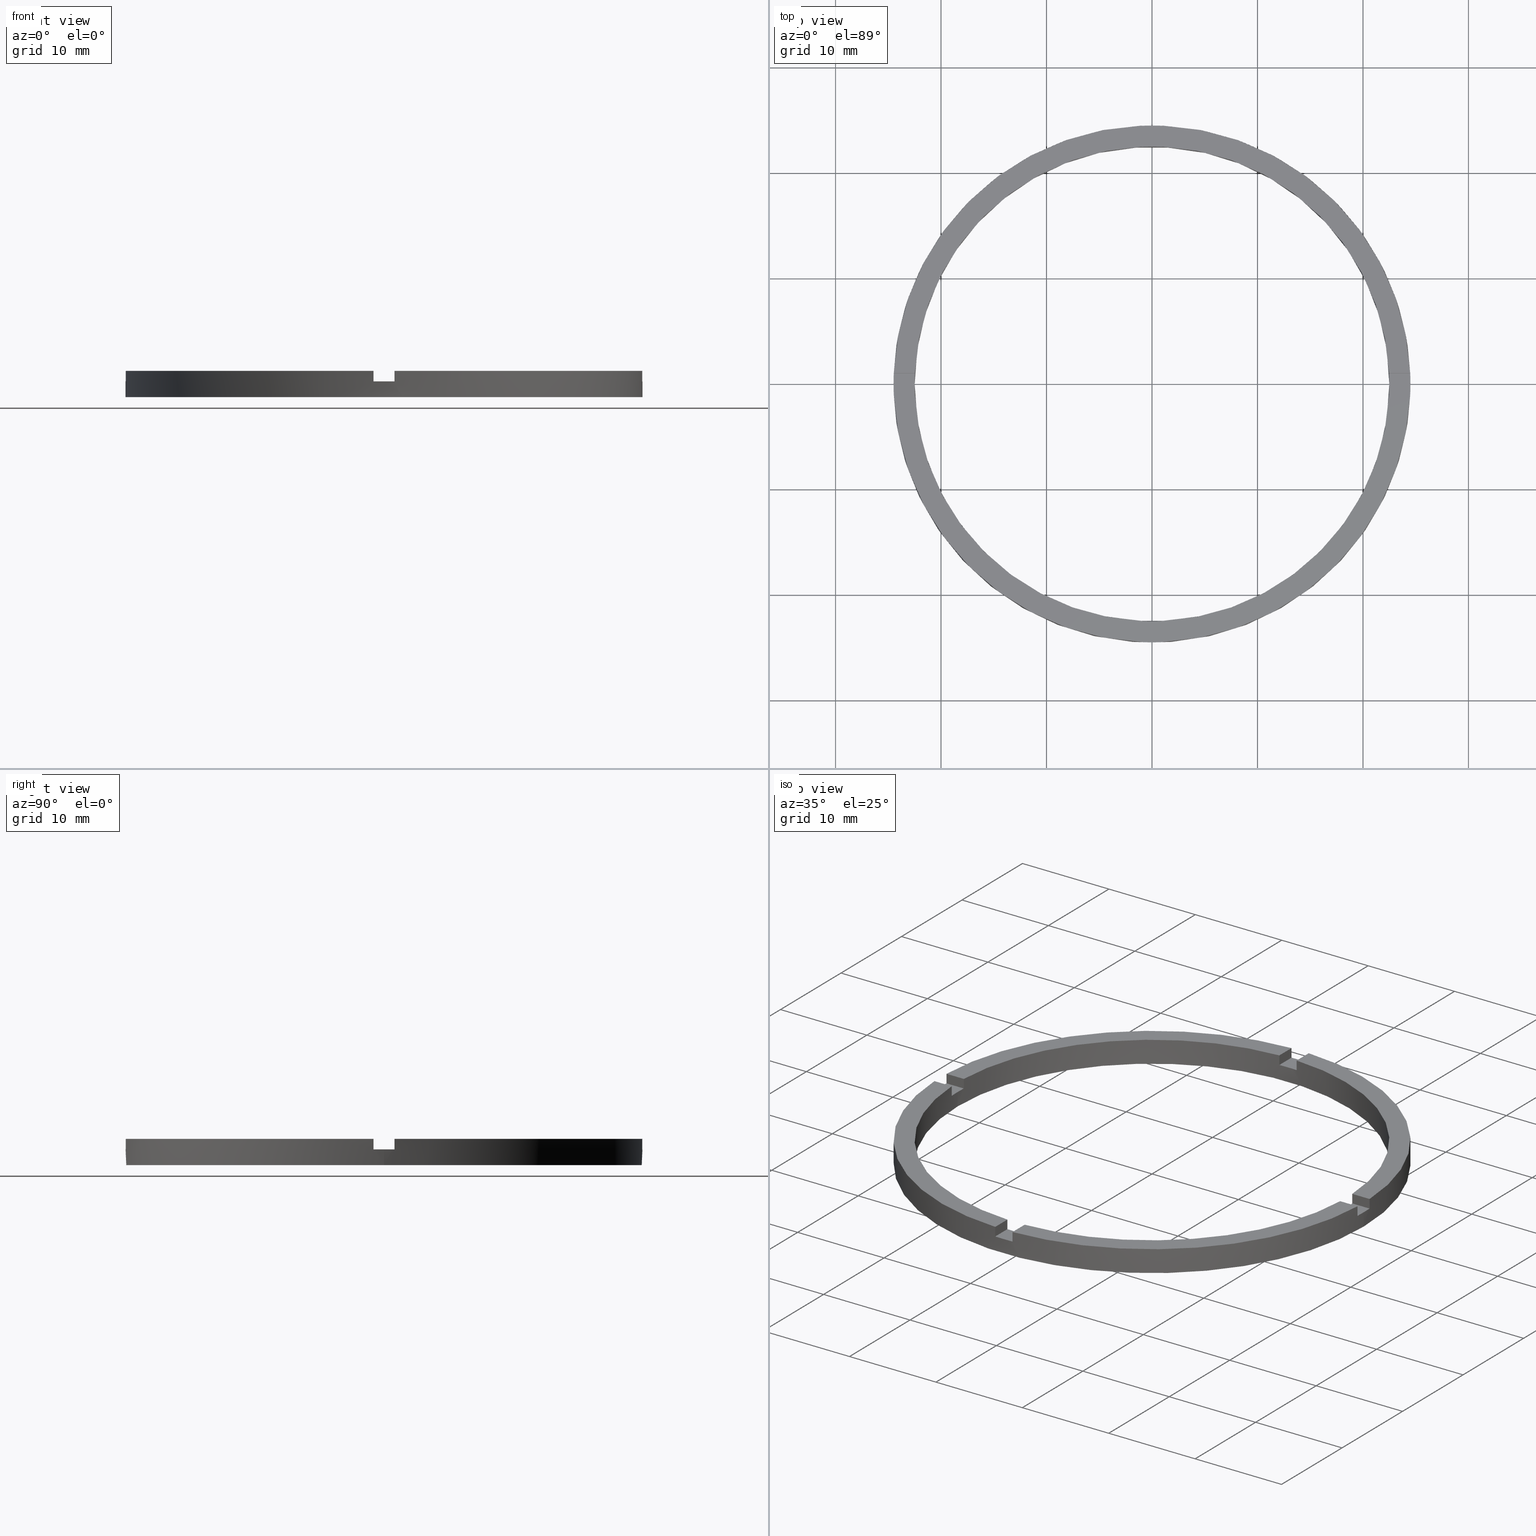
[diagram: canonical four-view strip — front | top / right | iso, engineering-drawing reading convention]
A machine part, canonical four-view strip (front | top / right | iso — engineering-drawing reading convention). The complete STEP part file that produces these views, byte-faithful:
ISO-10303-21;
HEADER;
FILE_DESCRIPTION (( 'STEP AP203' ),
    '1' );
FILE_NAME ('514103.step',
    '2024-12-26T02:37:47',
    ( 'MSI' ),
    ( '' ),
    'SwSTEP 2.0',
    'SolidWorks 2020',
    '' );
FILE_SCHEMA (( 'CONFIG_CONTROL_DESIGN' ));
ENDSEC;

DATA;
#1 = ORIENTED_EDGE ( 'NONE', *, *, #342, .F. ) ;
#2 = CARTESIAN_POINT ( 'NONE',  ( 0.000000000000000000, 0.000000000000000000, 1.500000000000000000 ) ) ;
#3 = EDGE_LOOP ( 'NONE', ( #246, #91 ) ) ;
#4 = ORIENTED_EDGE ( 'NONE', *, *, #556, .F. ) ;
#5 = EDGE_CURVE ( 'NONE', #759, #273, #355, .T. ) ;
#6 = DIRECTION ( 'NONE',  ( 0.000000000000000000, 0.000000000000000000, 1.000000000000000000 ) ) ;
#7 = DIRECTION ( 'NONE',  ( -0.000000000000000000, -0.000000000000000000, -1.000000000000000000 ) ) ;
#8 = DIRECTION ( 'NONE',  ( 0.000000000000000000, 0.000000000000000000, 1.000000000000000000 ) ) ;
#9 = ORIENTED_EDGE ( 'NONE', *, *, #593, .F. ) ;
#10 = AXIS2_PLACEMENT_3D ( 'NONE', #82, #397, #528 ) ;
#11 = ORIENTED_EDGE ( 'NONE', *, *, #5, .T. ) ;
#12 = EDGE_CURVE ( 'NONE', #112, #207, #603, .T. ) ;
#13 = VERTEX_POINT ( 'NONE', #702 ) ;
#14 = CC_DESIGN_PERSON_AND_ORGANIZATION_ASSIGNMENT ( #478, #467, ( #720 ) ) ;
#15 = ORIENTED_EDGE ( 'NONE', *, *, #181, .T. ) ;
#16 = ORIENTED_EDGE ( 'NONE', *, *, #654, .F. ) ;
#17 = ORIENTED_EDGE ( 'NONE', *, *, #475, .T. ) ;
#18 = ORIENTED_EDGE ( 'NONE', *, *, #681, .T. ) ;
#19 = ORIENTED_EDGE ( 'NONE', *, *, #308, .T. ) ;
#20 = ORIENTED_EDGE ( 'NONE', *, *, #707, .T. ) ;
#21 = ADVANCED_FACE ( 'NONE', ( #374 ), #75, .T. ) ;
#22 = CARTESIAN_POINT ( 'NONE',  ( 0.000000000000000000, 0.000000000000000000, 2.500000000000000000 ) ) ;
#23 = EDGE_CURVE ( 'NONE', #458, #607, #637, .T. ) ;
#24 = ORIENTED_EDGE ( 'NONE', *, *, #101, .F. ) ;
#25 = AXIS2_PLACEMENT_3D ( 'NONE', #305, #554, #57 ) ;
#26 = CARTESIAN_POINT ( 'NONE',  ( -14.50000000000018652, -1.000000000000023981, 1.500000000000000000 ) ) ;
#27 = APPLICATION_CONTEXT ( 'configuration controlled 3d designs of mechanical parts and assemblies' ) ;
#28 = DIRECTION ( 'NONE',  ( 0.000000000000000000, 0.000000000000000000, 1.000000000000000000 ) ) ;
#29 = UNCERTAINTY_MEASURE_WITH_UNIT (LENGTH_MEASURE( 1.000000000000000082E-05 ), #572, 'distance_accuracy_value', 'NONE');
#30 = DIRECTION ( 'NONE',  ( 0.000000000000000000, 0.000000000000000000, 1.000000000000000000 ) ) ;
#31 = EDGE_CURVE ( 'NONE', #284, #263, #360, .T. ) ;
#32 = DIRECTION ( 'NONE',  ( 0.000000000000000000, 0.000000000000000000, 1.000000000000000000 ) ) ;
#33 = CARTESIAN_POINT ( 'NONE',  ( -1.000000000000025979, 24.47958332978729601, 1.500000000000000000 ) ) ;
#34 = AXIS2_PLACEMENT_3D ( 'NONE', #488, #647, #170 ) ;
#35 = DIRECTION ( 'NONE',  ( 0.000000000000000000, 0.000000000000000000, 1.000000000000000000 ) ) ;
#36 = CARTESIAN_POINT ( 'NONE',  ( 0.9999999999998389066, -22.47776679298903346, 2.500000000000000000 ) ) ;
#37 = CC_DESIGN_DATE_AND_TIME_ASSIGNMENT ( #705, #291, ( #195 ) ) ;
#38 = CARTESIAN_POINT ( 'NONE',  ( -24.50000000000000000, 0.000000000000000000, 2.500000000000000000 ) ) ;
#39 = ORIENTED_EDGE ( 'NONE', *, *, #475, .F. ) ;
#40 = ORIENTED_EDGE ( 'NONE', *, *, #736, .F. ) ;
#41 = AXIS2_PLACEMENT_3D ( 'NONE', #48, #325, #628 ) ;
#42 = ORIENTED_EDGE ( 'NONE', *, *, #12, .F. ) ;
#43 = CARTESIAN_POINT ( 'NONE',  ( 22.47776679298903346, 0.9999999999998421263, 2.500000000000000000 ) ) ;
#44 = ORIENTED_EDGE ( 'NONE', *, *, #194, .T. ) ;
#45 = DIRECTION ( 'NONE',  ( 1.000000000000000000, 4.336808689942018352E-17, 0.000000000000000000 ) ) ;
#46 = EDGE_CURVE ( 'NONE', #542, #275, #618, .T. ) ;
#47 = DATE_TIME_ROLE ( 'classification_date' ) ;
#48 = CARTESIAN_POINT ( 'NONE',  ( 0.000000000000000000, 0.000000000000000000, 2.500000000000000000 ) ) ;
#49 = CARTESIAN_POINT ( 'NONE',  ( -1.000000000000025979, 14.50000000000000000, 1.500000000000000000 ) ) ;
#50 = ORIENTED_EDGE ( 'NONE', *, *, #386, .F. ) ;
#51 = ORIENTED_EDGE ( 'NONE', *, *, #12, .T. ) ;
#52 = EDGE_CURVE ( 'NONE', #97, #284, #98, .T. ) ;
#53 = AXIS2_PLACEMENT_3D ( 'NONE', #281, #471, #565 ) ;
#54 = CARTESIAN_POINT ( 'NONE',  ( 22.47776679298901925, -1.000000000000157874, 1.500000000000000000 ) ) ;
#55 = DIRECTION ( 'NONE',  ( 1.000000000000000000, 0.000000000000000000, 0.000000000000000000 ) ) ;
#56 = CARTESIAN_POINT ( 'NONE',  ( -1.000000000000025979, 22.47776679298902636, 2.500000000000000000 ) ) ;
#57 = DIRECTION ( 'NONE',  ( 1.000000000000000000, 0.000000000000000000, 0.000000000000000000 ) ) ;
#58 = PLANE ( 'NONE',  #764 ) ;
#59 = ADVANCED_FACE ( 'NONE', ( #133 ), #497, .F. ) ;
#60 = AXIS2_PLACEMENT_3D ( 'NONE', #585, #8, #55 ) ;
#61 = CARTESIAN_POINT ( 'NONE',  ( 14.49999999999999467, 0.9999999999998419042, 1.500000000000000000 ) ) ;
#62 = CARTESIAN_POINT ( 'NONE',  ( 22.50000000000000355, 2.755455298081545172E-15, 2.500000000000000000 ) ) ;
#63 = EDGE_CURVE ( 'NONE', #275, #731, #389, .T. ) ;
#64 = DIRECTION ( 'NONE',  ( 0.000000000000000000, -0.000000000000000000, 1.000000000000000000 ) ) ;
#65 = DIRECTION ( 'NONE',  ( 0.000000000000000000, 1.000000000000000000, 0.000000000000000000 ) ) ;
#66 = AXIS2_PLACEMENT_3D ( 'NONE', #493, #192, #299 ) ;
#67 = AXIS2_PLACEMENT_3D ( 'NONE', #761, #30, #616 ) ;
#68 = APPLICATION_PROTOCOL_DEFINITION ( 'international standard', 'config_control_design', 1994, #27 ) ;
#69 = DIRECTION ( 'NONE',  ( -0.000000000000000000, 0.000000000000000000, 1.000000000000000000 ) ) ;
#70 = CC_DESIGN_PERSON_AND_ORGANIZATION_ASSIGNMENT ( #711, #88, ( #574 ) ) ;
#71 = PLANE ( 'NONE',  #768 ) ;
#72 = ADVANCED_FACE ( 'NONE', ( #651 ), #219, .T. ) ;
#73 = CARTESIAN_POINT ( 'NONE',  ( 0.9999999999999740208, 22.47776679298902636, 2.500000000000000000 ) ) ;
#74 = CARTESIAN_POINT ( 'NONE',  ( 0.000000000000000000, 0.000000000000000000, 0.000000000000000000 ) ) ;
#75 = PLANE ( 'NONE',  #521 ) ;
#76 = EDGE_CURVE ( 'NONE', #611, #520, #659, .T. ) ;
#77 = CARTESIAN_POINT ( 'NONE',  ( 14.49999999999999467, -1.000000000000158096, 1.500000000000000000 ) ) ;
#78 = ORIENTED_EDGE ( 'NONE', *, *, #515, .T. ) ;
#79 = ORIENTED_EDGE ( 'NONE', *, *, #354, .F. ) ;
#80 = APPROVAL_ROLE ( '' ) ;
#81 = VERTEX_POINT ( 'NONE', #215 ) ;
#82 = CARTESIAN_POINT ( 'NONE',  ( 0.000000000000000000, 0.000000000000000000, 0.000000000000000000 ) ) ;
#83 = EDGE_LOOP ( 'NONE', ( #378, #632, #104, #79, #563, #145 ) ) ;
#84 = ORIENTED_EDGE ( 'NONE', *, *, #763, .F. ) ;
#85 = AXIS2_PLACEMENT_3D ( 'NONE', #631, #576, #776 ) ;
#86 = EDGE_LOOP ( 'NONE', ( #734, #718, #99, #210, #535, #205, #728, #19, #615, #93, #4, #341 ) ) ;
#87 = MANIFOLD_SOLID_BREP ( '�г�-����1', #455 ) ;
#88 = PERSON_AND_ORGANIZATION_ROLE ( 'classification_officer' ) ;
#89 = PLANE ( 'NONE',  #148 ) ;
#90 = EDGE_LOOP ( 'NONE', ( #534, #286, #20, #24, #115, #113 ) ) ;
#91 = ORIENTED_EDGE ( 'NONE', *, *, #568, .F. ) ;
#92 = CC_DESIGN_DATE_AND_TIME_ASSIGNMENT ( #460, #47, ( #574 ) ) ;
#93 = ORIENTED_EDGE ( 'NONE', *, *, #31, .T. ) ;
#94 = PLANE ( 'NONE',  #454 ) ;
#95 = VECTOR ( 'NONE', #577, 1000.000000000000000 ) ;
#96 = CARTESIAN_POINT ( 'NONE',  ( 0.000000000000000000, 0.000000000000000000, 2.500000000000000000 ) ) ;
#97 = VERTEX_POINT ( 'NONE', #507 ) ;
#98 = LINE ( 'NONE', #109, #382 ) ;
#99 = ORIENTED_EDGE ( 'NONE', *, *, #568, .T. ) ;
#100 = AXIS2_PLACEMENT_3D ( 'NONE', #96, #730, #245 ) ;
#101 = EDGE_CURVE ( 'NONE', #611, #643, #399, .T. ) ;
#102 = ORIENTED_EDGE ( 'NONE', *, *, #301, .F. ) ;
#103 = DIRECTION ( 'NONE',  ( -0.000000000000000000, -0.000000000000000000, -1.000000000000000000 ) ) ;
#104 = ORIENTED_EDGE ( 'NONE', *, *, #743, .T. ) ;
#105 = ORIENTED_EDGE ( 'NONE', *, *, #356, .T. ) ;
#106 = CC_DESIGN_PERSON_AND_ORGANIZATION_ASSIGNMENT ( #186, #175, ( #462 ) ) ;
#107 = ORIENTED_EDGE ( 'NONE', *, *, #76, .T. ) ;
#108 = ORIENTED_EDGE ( 'NONE', *, *, #743, .F. ) ;
#109 = CARTESIAN_POINT ( 'NONE',  ( 0.9999999999999740208, 14.50000000000000000, 1.500000000000000000 ) ) ;
#110 = ORIENTED_EDGE ( 'NONE', *, *, #491, .F. ) ;
#111 = CARTESIAN_POINT ( 'NONE',  ( -14.50000000000018652, 0.9999999999999759082, 2.500000000000000000 ) ) ;
#112 = VERTEX_POINT ( 'NONE', #602 ) ;
#113 = ORIENTED_EDGE ( 'NONE', *, *, #23, .T. ) ;
#114 = ORIENTED_EDGE ( 'NONE', *, *, #681, .F. ) ;
#115 = ORIENTED_EDGE ( 'NONE', *, *, #322, .F. ) ;
#116 = CARTESIAN_POINT ( 'NONE',  ( -1.000000000000160760, -24.47958332978728890, 2.500000000000000000 ) ) ;
#117 = VERTEX_POINT ( 'NONE', #320 ) ;
#118 = CARTESIAN_POINT ( 'NONE',  ( 0.9999999999999740208, 14.50000000000000000, 2.500000000000000000 ) ) ;
#119 = EDGE_CURVE ( 'NONE', #624, #533, #410, .T. ) ;
#120 = ORIENTED_EDGE ( 'NONE', *, *, #324, .F. ) ;
#121 = ORIENTED_EDGE ( 'NONE', *, *, #599, .T. ) ;
#122 = PLANE ( 'NONE',  #266 ) ;
#123 = CARTESIAN_POINT ( 'NONE',  ( 22.50000000000000355, 2.755455298081545172E-15, 1.500000000000000000 ) ) ;
#124 = CARTESIAN_POINT ( 'NONE',  ( 0.9999999999999740208, 14.50000000000000000, 1.500000000000000000 ) ) ;
#125 = VECTOR ( 'NONE', #752, 1000.000000000000000 ) ;
#126 = VECTOR ( 'NONE', #231, 1000.000000000000000 ) ;
#127 = CARTESIAN_POINT ( 'NONE',  ( 14.49999999999999467, 0.9999999999998419042, 1.500000000000000000 ) ) ;
#128 = FACE_OUTER_BOUND ( 'NONE', #370, .T. ) ;
#129 = DIRECTION ( 'NONE',  ( -0.000000000000000000, -0.000000000000000000, -1.000000000000000000 ) ) ;
#130 = CARTESIAN_POINT ( 'NONE',  ( 14.49999999999999467, -1.000000000000158096, 2.500000000000000000 ) ) ;
#131 = FACE_OUTER_BOUND ( 'NONE', #630, .T. ) ;
#132 = CARTESIAN_POINT ( 'NONE',  ( 24.50000000000000000, 3.000384657911015469E-15, 1.500000000000000000 ) ) ;
#133 = FACE_OUTER_BOUND ( 'NONE', #264, .T. ) ;
#134 = FACE_OUTER_BOUND ( 'NONE', #287, .T. ) ;
#135 = DIRECTION ( 'NONE',  ( 0.000000000000000000, 0.000000000000000000, 1.000000000000000000 ) ) ;
#136 = DESIGN_CONTEXT ( 'detailed design', #514, 'design' ) ;
#137 = CARTESIAN_POINT ( 'NONE',  ( -1.000000000000160760, -24.47958332978728890, 2.500000000000000000 ) ) ;
#138 = EDGE_CURVE ( 'NONE', #607, #782, #418, .T. ) ;
#139 = LINE ( 'NONE', #479, #670 ) ;
#140 = FACE_OUTER_BOUND ( 'NONE', #540, .T. ) ;
#141 = VECTOR ( 'NONE', #413, 1000.000000000000000 ) ;
#142 = MECHANICAL_CONTEXT ( 'NONE', #27, 'mechanical' ) ;
#143 = VECTOR ( 'NONE', #6, 1000.000000000000000 ) ;
#144 = DIRECTION ( 'NONE',  ( -0.000000000000000000, -0.000000000000000000, -1.000000000000000000 ) ) ;
#145 = ORIENTED_EDGE ( 'NONE', *, *, #513, .T. ) ;
#146 = VECTOR ( 'NONE', #584, 1000.000000000000000 ) ;
#147 = ORIENTED_EDGE ( 'NONE', *, *, #267, .T. ) ;
#148 = AXIS2_PLACEMENT_3D ( 'NONE', #185, #650, #573 ) ;
#149 = CIRCLE ( 'NONE', #25, 24.50000000000000000 ) ;
#150 = VECTOR ( 'NONE', #758, 1000.000000000000000 ) ;
#151 = EDGE_CURVE ( 'NONE', #714, #624, #662, .T. ) ;
#152 = DIRECTION ( 'NONE',  ( 0.000000000000000000, 0.000000000000000000, 1.000000000000000000 ) ) ;
#153 = CIRCLE ( 'NONE', #41, 22.50000000000000355 ) ;
#154 = AXIS2_PLACEMENT_3D ( 'NONE', #127, #601, #316 ) ;
#155 = DIRECTION ( 'NONE',  ( 0.000000000000000000, 0.000000000000000000, 1.000000000000000000 ) ) ;
#156 = CYLINDRICAL_SURFACE ( 'NONE', #100, 22.50000000000000355 ) ;
#157 = FACE_OUTER_BOUND ( 'NONE', #709, .T. ) ;
#158 = CIRCLE ( 'NONE', #251, 24.50000000000000000 ) ;
#159 = VECTOR ( 'NONE', #238, 1000.000000000000000 ) ;
#160 = DIRECTION ( 'NONE',  ( 1.000000000000000000, 0.000000000000000000, 0.000000000000000000 ) ) ;
#161 = LINE ( 'NONE', #345, #126 ) ;
#162 = VECTOR ( 'NONE', #489, 1000.000000000000000 ) ;
#163 = EDGE_CURVE ( 'NONE', #328, #621, #149, .T. ) ;
#164 = CIRCLE ( 'NONE', #10, 24.50000000000000000 ) ;
#165 = AXIS2_PLACEMENT_3D ( 'NONE', #22, #262, #311 ) ;
#166 = LINE ( 'NONE', #232, #691 ) ;
#167 = CIRCLE ( 'NONE', #225, 22.50000000000000355 ) ;
#168 = LINE ( 'NONE', #312, #686 ) ;
#169 = CIRCLE ( 'NONE', #742, 24.50000000000000000 ) ;
#170 = DIRECTION ( 'NONE',  ( 1.000000000000000000, 0.000000000000000000, 0.000000000000000000 ) ) ;
#171 = FACE_OUTER_BOUND ( 'NONE', #623, .T. ) ;
#172 = FACE_OUTER_BOUND ( 'NONE', #303, .T. ) ;
#173 = CYLINDRICAL_SURFACE ( 'NONE', #437, 24.50000000000000000 ) ;
#174 = CIRCLE ( 'NONE', #391, 24.50000000000000000 ) ;
#175 = PERSON_AND_ORGANIZATION_ROLE ( 'creator' ) ;
#176 = LINE ( 'NONE', #754, #433 ) ;
#177 = CARTESIAN_POINT ( 'NONE',  ( 0.000000000000000000, 0.000000000000000000, 2.500000000000000000 ) ) ;
#178 = LINE ( 'NONE', #56, #430 ) ;
#179 = FACE_OUTER_BOUND ( 'NONE', #90, .T. ) ;
#180 = DIRECTION ( 'NONE',  ( 0.000000000000000000, 0.000000000000000000, 1.000000000000000000 ) ) ;
#181 = EDGE_CURVE ( 'NONE', #274, #263, #406, .T. ) ;
#182 = FACE_OUTER_BOUND ( 'NONE', #3, .T. ) ;
#183 = CIRCLE ( 'NONE', #34, 24.50000000000000000 ) ;
#184 = LINE ( 'NONE', #751, #191 ) ;
#185 = CARTESIAN_POINT ( 'NONE',  ( -1.000000000000162093, -14.50000000000018119, 1.500000000000000000 ) ) ;
#186 = PERSON_AND_ORGANIZATION ( #495, #474 ) ;
#187 = COORDINATED_UNIVERSAL_TIME_OFFSET ( 8, 0, .AHEAD. ) ;
#188 = LOCAL_TIME ( 10, 37, 47.00000000000000000, #438 ) ;
#189 = ORIENTED_EDGE ( 'NONE', *, *, #356, .F. ) ;
#190 = DIRECTION ( 'NONE',  ( -0.000000000000000000, 0.000000000000000000, 1.000000000000000000 ) ) ;
#191 = VECTOR ( 'NONE', #749, 1000.000000000000000 ) ;
#192 = DIRECTION ( 'NONE',  ( 0.000000000000000000, -0.000000000000000000, 1.000000000000000000 ) ) ;
#193 = PERSON_AND_ORGANIZATION ( #495, #474 ) ;
#194 = EDGE_CURVE ( 'NONE', #624, #621, #649, .T. ) ;
#195 = PRODUCT_DEFINITION ( 'δ֪', '', #462, #136 ) ;
#196 = ORIENTED_EDGE ( 'NONE', *, *, #23, .F. ) ;
#197 = DIRECTION ( 'NONE',  ( -1.000000000000000000, -1.734723475976807341E-16, 0.000000000000000000 ) ) ;
#198 = CIRCLE ( 'NONE', #673, 22.50000000000000355 ) ;
#199 = VERTEX_POINT ( 'NONE', #33 ) ;
#200 = DATE_AND_TIME ( #729, #188 ) ;
#201 = ORIENTED_EDGE ( 'NONE', *, *, #181, .F. ) ;
#202 = APPROVAL_PERSON_ORGANIZATION ( #193, #744, #329 ) ;
#203 = ORIENTED_EDGE ( 'NONE', *, *, #278, .F. ) ;
#204 = CALENDAR_DATE ( 2024, 26, 12 ) ;
#205 = ORIENTED_EDGE ( 'NONE', *, *, #393, .T. ) ;
#206 = EDGE_CURVE ( 'NONE', #242, #717, #139, .T. ) ;
#207 = VERTEX_POINT ( 'NONE', #36 ) ;
#208 = LOCAL_TIME ( 10, 37, 47.00000000000000000, #704 ) ;
#209 = CARTESIAN_POINT ( 'NONE',  ( 22.47776679298903346, 0.9999999999998421263, 1.500000000000000000 ) ) ;
#210 = ORIENTED_EDGE ( 'NONE', *, *, #337, .F. ) ;
#211 = CIRCLE ( 'NONE', #344, 22.50000000000000355 ) ;
#212 = ADVANCED_FACE ( 'NONE', ( #134 ), #706, .F. ) ;
#213 = APPROVAL_DATE_TIME ( #200, #594 ) ;
#214 = CARTESIAN_POINT ( 'NONE',  ( 0.000000000000000000, 0.000000000000000000, 2.500000000000000000 ) ) ;
#215 = CARTESIAN_POINT ( 'NONE',  ( -1.000000000000025979, 22.47776679298902636, 2.500000000000000000 ) ) ;
#216 = LOCAL_TIME ( 10, 37, 47.00000000000000000, #469 ) ;
#217 = AXIS2_PLACEMENT_3D ( 'NONE', #557, #597, #750 ) ;
#218 = PLANE ( 'NONE',  #154 ) ;
#219 = PLANE ( 'NONE',  #229 ) ;
#220 = CARTESIAN_POINT ( 'NONE',  ( -14.50000000000018652, 0.9999999999999759082, 1.500000000000000000 ) ) ;
#221 = CARTESIAN_POINT ( 'NONE',  ( 0.000000000000000000, 0.000000000000000000, 1.500000000000000000 ) ) ;
#222 = DIRECTION ( 'NONE',  ( 1.000000000000000000, 0.000000000000000000, -0.000000000000000000 ) ) ;
#223 = ADVANCED_FACE ( 'NONE', ( #131 ), #680, .T. ) ;
#224 = DIRECTION ( 'NONE',  ( 1.000000000000000000, 0.000000000000000000, -0.000000000000000000 ) ) ;
#225 = AXIS2_PLACEMENT_3D ( 'NONE', #261, #64, #760 ) ;
#226 = CARTESIAN_POINT ( 'NONE',  ( -22.47776679298902636, -1.000000000000025313, 1.500000000000000000 ) ) ;
#227 = AXIS2_PLACEMENT_3D ( 'NONE', #690, #371, #318 ) ;
#228 = CARTESIAN_POINT ( 'NONE',  ( 0.000000000000000000, 0.000000000000000000, 2.500000000000000000 ) ) ;
#229 = AXIS2_PLACEMENT_3D ( 'NONE', #247, #28, #222 ) ;
#230 = PERSON_AND_ORGANIZATION_ROLE ( 'creator' ) ;
#231 = DIRECTION ( 'NONE',  ( -0.000000000000000000, -0.000000000000000000, -1.000000000000000000 ) ) ;
#232 = CARTESIAN_POINT ( 'NONE',  ( -1.000000000000025979, 14.50000000000000000, 1.500000000000000000 ) ) ;
#233 = DIRECTION ( 'NONE',  ( 1.000000000000000000, 0.000000000000000000, 0.000000000000000000 ) ) ;
#234 = VERTEX_POINT ( 'NONE', #676 ) ;
#235 = PERSON_AND_ORGANIZATION_ROLE ( 'design_supplier' ) ;
#236 = CARTESIAN_POINT ( 'NONE',  ( 0.9999999999999740208, 24.47958332978729601, 1.500000000000000000 ) ) ;
#237 = ORIENTED_EDGE ( 'NONE', *, *, #52, .T. ) ;
#238 = DIRECTION ( 'NONE',  ( 0.000000000000000000, 0.000000000000000000, 1.000000000000000000 ) ) ;
#239 = DIRECTION ( 'NONE',  ( 0.000000000000000000, 0.000000000000000000, 1.000000000000000000 ) ) ;
#240 = EDGE_CURVE ( 'NONE', #112, #782, #392, .T. ) ;
#241 = ORIENTED_EDGE ( 'NONE', *, *, #599, .F. ) ;
#242 = VERTEX_POINT ( 'NONE', #132 ) ;
#243 = ORIENTED_EDGE ( 'NONE', *, *, #509, .T. ) ;
#244 = CARTESIAN_POINT ( 'NONE',  ( -1.000000000000025979, 24.47958332978729601, 2.500000000000000000 ) ) ;
#245 = DIRECTION ( 'NONE',  ( -1.000000000000000000, 0.000000000000000000, 0.000000000000000000 ) ) ;
#246 = ORIENTED_EDGE ( 'NONE', *, *, #487, .F. ) ;
#247 = CARTESIAN_POINT ( 'NONE',  ( 0.000000000000000000, 0.000000000000000000, 1.500000000000000000 ) ) ;
#248 = PLANE ( 'NONE',  #484 ) ;
#249 = ADVANCED_FACE ( 'NONE', ( #157 ), #122, .T. ) ;
#250 = DIRECTION ( 'NONE',  ( 0.000000000000000000, 0.000000000000000000, 1.000000000000000000 ) ) ;
#251 = AXIS2_PLACEMENT_3D ( 'NONE', #648, #306, #552 ) ;
#252 = CARTESIAN_POINT ( 'NONE',  ( -22.47776679298902636, 0.9999999999999746869, 2.500000000000000000 ) ) ;
#253 = EDGE_LOOP ( 'NONE', ( #51, #510, #417, #50 ) ) ;
#254 = EDGE_CURVE ( 'NONE', #607, #242, #158, .T. ) ;
#255 = EDGE_LOOP ( 'NONE', ( #260, #107, #280, #9, #468, #84, #724, #203, #537, #726, #522, #472 ) ) ;
#256 = ADVANCED_FACE ( 'NONE', ( #421 ), #156, .F. ) ;
#257 = DIRECTION ( 'NONE',  ( -0.000000000000000000, -0.000000000000000000, -1.000000000000000000 ) ) ;
#258 = EDGE_LOOP ( 'NONE', ( #346, #121, #110, #237 ) ) ;
#259 = DIRECTION ( 'NONE',  ( 0.000000000000000000, 0.000000000000000000, 1.000000000000000000 ) ) ;
#260 = ORIENTED_EDGE ( 'NONE', *, *, #322, .T. ) ;
#261 = CARTESIAN_POINT ( 'NONE',  ( 0.000000000000000000, 0.000000000000000000, 1.500000000000000000 ) ) ;
#262 = DIRECTION ( 'NONE',  ( 0.000000000000000000, 0.000000000000000000, 1.000000000000000000 ) ) ;
#263 = VERTEX_POINT ( 'NONE', #330 ) ;
#264 = EDGE_LOOP ( 'NONE', ( #196, #358, #17, #635 ) ) ;
#265 = CARTESIAN_POINT ( 'NONE',  ( 22.47776679298901925, -1.000000000000157874, 2.500000000000000000 ) ) ;
#266 = AXIS2_PLACEMENT_3D ( 'NONE', #214, #579, #294 ) ;
#267 = EDGE_CURVE ( 'NONE', #362, #520, #682, .T. ) ;
#268 = ORIENTED_EDGE ( 'NONE', *, *, #707, .F. ) ;
#269 = AXIS2_PLACEMENT_3D ( 'NONE', #49, #527, #775 ) ;
#270 = DIRECTION ( 'NONE',  ( 0.000000000000000000, 0.000000000000000000, 1.000000000000000000 ) ) ;
#271 = DIRECTION ( 'NONE',  ( 1.000000000000000000, 0.000000000000000000, 0.000000000000000000 ) ) ;
#272 = DIRECTION ( 'NONE',  ( 1.000000000000000000, 0.000000000000000000, -0.000000000000000000 ) ) ;
#273 = VERTEX_POINT ( 'NONE', #298 ) ;
#274 = VERTEX_POINT ( 'NONE', #748 ) ;
#275 = VERTEX_POINT ( 'NONE', #657 ) ;
#276 = PLANE ( 'NONE',  #545 ) ;
#277 = ADVANCED_FACE ( 'NONE', ( #140 ), #492, .T. ) ;
#278 = EDGE_CURVE ( 'NONE', #714, #117, #646, .T. ) ;
#279 = VERTEX_POINT ( 'NONE', #591 ) ;
#280 = ORIENTED_EDGE ( 'NONE', *, *, #267, .F. ) ;
#281 = CARTESIAN_POINT ( 'NONE',  ( -14.50000000000018652, 0.9999999999999759082, 1.500000000000000000 ) ) ;
#282 = DIRECTION ( 'NONE',  ( -1.000000000000000000, -1.734723475976807341E-16, 0.000000000000000000 ) ) ;
#283 = ORIENTED_EDGE ( 'NONE', *, *, #498, .F. ) ;
#284 = VERTEX_POINT ( 'NONE', #236 ) ;
#285 = ORIENTED_EDGE ( 'NONE', *, *, #393, .F. ) ;
#286 = ORIENTED_EDGE ( 'NONE', *, *, #583, .T. ) ;
#287 = EDGE_LOOP ( 'NONE', ( #379, #373, #529, #285 ) ) ;
#288 = DIRECTION ( 'NONE',  ( 0.000000000000000000, 0.000000000000000000, 1.000000000000000000 ) ) ;
#289 = DIRECTION ( 'NONE',  ( -0.000000000000000000, -0.000000000000000000, -1.000000000000000000 ) ) ;
#290 = DIRECTION ( 'NONE',  ( 1.000000000000000000, 0.000000000000000000, 0.000000000000000000 ) ) ;
#291 = DATE_TIME_ROLE ( 'creation_date' ) ;
#292 = AXIS2_PLACEMENT_3D ( 'NONE', #394, #770, #721 ) ;
#293 = AXIS2_PLACEMENT_3D ( 'NONE', #449, #502, #661 ) ;
#294 = DIRECTION ( 'NONE',  ( 1.000000000000000000, 0.000000000000000000, -0.000000000000000000 ) ) ;
#295 = CARTESIAN_POINT ( 'NONE',  ( 14.49999999999999467, 0.9999999999998419042, 2.500000000000000000 ) ) ;
#296 = CC_DESIGN_APPROVAL ( #744, ( #462 ) ) ;
#297 = CARTESIAN_POINT ( 'NONE',  ( -24.47958332978729601, 0.9999999999999742428, 1.500000000000000000 ) ) ;
#298 = CARTESIAN_POINT ( 'NONE',  ( -22.50000000000000355, 0.000000000000000000, 1.500000000000000000 ) ) ;
#299 = DIRECTION ( 'NONE',  ( 1.000000000000000000, 0.000000000000000000, -0.000000000000000000 ) ) ;
#300 = EDGE_CURVE ( 'NONE', #207, #518, #660, .T. ) ;
#301 = EDGE_CURVE ( 'NONE', #614, #452, #402, .T. ) ;
#302 = ORIENTED_EDGE ( 'NONE', *, *, #551, .F. ) ;
#303 = EDGE_LOOP ( 'NONE', ( #372, #605, #241, #363 ) ) ;
#304 = ORIENTED_EDGE ( 'NONE', *, *, #654, .T. ) ;
#305 = CARTESIAN_POINT ( 'NONE',  ( 0.000000000000000000, 0.000000000000000000, 2.500000000000000000 ) ) ;
#306 = DIRECTION ( 'NONE',  ( 0.000000000000000000, 0.000000000000000000, 1.000000000000000000 ) ) ;
#307 = CARTESIAN_POINT ( 'NONE',  ( 0.000000000000000000, 0.000000000000000000, 2.500000000000000000 ) ) ;
#308 = EDGE_CURVE ( 'NONE', #519, #199, #644, .T. ) ;
#309 = CARTESIAN_POINT ( 'NONE',  ( -24.47958332978729601, -1.000000000000025757, 1.500000000000000000 ) ) ;
#310 = ORIENTED_EDGE ( 'NONE', *, *, #337, .T. ) ;
#311 = DIRECTION ( 'NONE',  ( 1.000000000000000000, 0.000000000000000000, 0.000000000000000000 ) ) ;
#312 = CARTESIAN_POINT ( 'NONE',  ( -22.50000000000000355, 0.000000000000000000, 2.500000000000000000 ) ) ;
#313 = ORIENTED_EDGE ( 'NONE', *, *, #76, .F. ) ;
#314 = ORIENTED_EDGE ( 'NONE', *, *, #151, .T. ) ;
#315 = CARTESIAN_POINT ( 'NONE',  ( 0.000000000000000000, 0.000000000000000000, 2.500000000000000000 ) ) ;
#316 = DIRECTION ( 'NONE',  ( -1.000000000000000000, -4.336808689942018352E-17, 0.000000000000000000 ) ) ;
#317 = DIRECTION ( 'NONE',  ( 1.000000000000000000, 0.000000000000000000, 0.000000000000000000 ) ) ;
#318 = DIRECTION ( 'NONE',  ( 1.000000000000000000, 0.000000000000000000, 0.000000000000000000 ) ) ;
#319 = AXIS2_PLACEMENT_3D ( 'NONE', #490, #419, #547 ) ;
#320 = CARTESIAN_POINT ( 'NONE',  ( -1.000000000000161204, -22.47776679298901925, 2.500000000000000000 ) ) ;
#321 = ADVANCED_FACE ( 'NONE', ( #128 ), #653, .F. ) ;
#322 = EDGE_CURVE ( 'NONE', #458, #611, #390, .T. ) ;
#323 = DIRECTION ( 'NONE',  ( 1.000000000000000000, 0.000000000000000000, 0.000000000000000000 ) ) ;
#324 = EDGE_CURVE ( 'NONE', #543, #351, #161, .T. ) ;
#325 = DIRECTION ( 'NONE',  ( 0.000000000000000000, 0.000000000000000000, 1.000000000000000000 ) ) ;
#326 = EDGE_CURVE ( 'NONE', #543, #343, #664, .T. ) ;
#327 = DIRECTION ( 'NONE',  ( -1.301042606982605321E-16, 1.000000000000000000, -0.000000000000000000 ) ) ;
#328 = VERTEX_POINT ( 'NONE', #737 ) ;
#329 = APPROVAL_ROLE ( '' ) ;
#330 = CARTESIAN_POINT ( 'NONE',  ( 0.9999999999999740208, 24.47958332978729601, 2.500000000000000000 ) ) ;
#331 = PLANE ( 'NONE',  #589 ) ;
#332 = CARTESIAN_POINT ( 'NONE',  ( 0.9999999999998393507, -24.47958332978729956, 1.500000000000000000 ) ) ;
#333 = APPROVAL_STATUS ( 'not_yet_approved' ) ;
#334 = DIRECTION ( 'NONE',  ( 0.000000000000000000, 0.000000000000000000, 1.000000000000000000 ) ) ;
#335 = AXIS2_PLACEMENT_3D ( 'NONE', #339, #426, #496 ) ;
#336 = CARTESIAN_POINT ( 'NONE',  ( 24.47958332978729956, 0.9999999999998423483, 2.500000000000000000 ) ) ;
#337 = EDGE_CURVE ( 'NONE', #275, #279, #401, .T. ) ;
#338 = CC_DESIGN_APPROVAL ( #594, ( #195 ) ) ;
#339 = CARTESIAN_POINT ( 'NONE',  ( 0.000000000000000000, 0.000000000000000000, 2.500000000000000000 ) ) ;
#340 = ORIENTED_EDGE ( 'NONE', *, *, #551, .T. ) ;
#341 = ORIENTED_EDGE ( 'NONE', *, *, #324, .T. ) ;
#342 = EDGE_CURVE ( 'NONE', #519, #81, #665, .T. ) ;
#343 = VERTEX_POINT ( 'NONE', #712 ) ;
#344 = AXIS2_PLACEMENT_3D ( 'NONE', #626, #152, #323 ) ;
#345 = CARTESIAN_POINT ( 'NONE',  ( 24.47958332978729956, 0.9999999999998423483, 2.500000000000000000 ) ) ;
#346 = ORIENTED_EDGE ( 'NONE', *, *, #553, .T. ) ;
#347 = DIRECTION ( 'NONE',  ( 0.000000000000000000, 0.000000000000000000, 1.000000000000000000 ) ) ;
#348 = ORIENTED_EDGE ( 'NONE', *, *, #491, .T. ) ;
#349 = ORIENTED_EDGE ( 'NONE', *, *, #138, .T. ) ;
#350 = ORIENTED_EDGE ( 'NONE', *, *, #326, .T. ) ;
#351 = VERTEX_POINT ( 'NONE', #777 ) ;
#352 = DIRECTION ( 'NONE',  ( 1.000000000000000000, -0.000000000000000000, 0.000000000000000000 ) ) ;
#353 = ADVANCED_FACE ( 'NONE', ( #408 ), #420, .T. ) ;
#354 = EDGE_CURVE ( 'NONE', #273, #368, #668, .T. ) ;
#355 = CIRCLE ( 'NONE', #67, 22.50000000000000355 ) ;
#356 = EDGE_CURVE ( 'NONE', #81, #614, #153, .T. ) ;
#357 = CARTESIAN_POINT ( 'NONE',  ( 0.9999999999998380185, -14.50000000000018119, 1.500000000000000000 ) ) ;
#358 = ORIENTED_EDGE ( 'NONE', *, *, #636, .T. ) ;
#359 = DIRECTION ( 'NONE',  ( 0.000000000000000000, 0.000000000000000000, 1.000000000000000000 ) ) ;
#360 = LINE ( 'NONE', #755, #619 ) ;
#361 = DIRECTION ( 'NONE',  ( -1.000000000000000000, 0.000000000000000000, 0.000000000000000000 ) ) ;
#362 = VERTEX_POINT ( 'NONE', #620 ) ;
#363 = ORIENTED_EDGE ( 'NONE', *, *, #308, .F. ) ;
#364 = CARTESIAN_POINT ( 'NONE',  ( 22.47776679298901925, -1.000000000000157874, 2.500000000000000000 ) ) ;
#365 = ORIENTED_EDGE ( 'NONE', *, *, #763, .T. ) ;
#366 = ORIENTED_EDGE ( 'NONE', *, *, #386, .T. ) ;
#367 = ORIENTED_EDGE ( 'NONE', *, *, #593, .T. ) ;
#368 = VERTEX_POINT ( 'NONE', #226 ) ;
#369 = ORIENTED_EDGE ( 'NONE', *, *, #652, .T. ) ;
#370 = EDGE_LOOP ( 'NONE', ( #313, #645, #16, #78, #536, #348, #383, #105, #283, #11, #367, #638 ) ) ;
#371 = DIRECTION ( 'NONE',  ( 0.000000000000000000, 0.000000000000000000, 1.000000000000000000 ) ) ;
#372 = ORIENTED_EDGE ( 'NONE', *, *, #342, .T. ) ;
#373 = ORIENTED_EDGE ( 'NONE', *, *, #498, .T. ) ;
#374 = FACE_OUTER_BOUND ( 'NONE', #613, .T. ) ;
#375 = DIRECTION ( 'NONE',  ( 0.000000000000000000, 0.000000000000000000, 1.000000000000000000 ) ) ;
#376 = PRODUCT_DEFINITION_SHAPE ( 'NONE', 'NONE',  #195 ) ;
#377 = APPROVAL ( #412, 'δָ��' ) ;
#378 = ORIENTED_EDGE ( 'NONE', *, *, #46, .T. ) ;
#379 = ORIENTED_EDGE ( 'NONE', *, *, #513, .F. ) ;
#380 = ADVANCED_FACE ( 'NONE', ( #409 ), #89, .F. ) ;
#381 = DIRECTION ( 'NONE',  ( -1.301042606982605321E-16, 1.000000000000000000, 0.000000000000000000 ) ) ;
#382 = VECTOR ( 'NONE', #442, 1000.000000000000000 ) ;
#383 = ORIENTED_EDGE ( 'NONE', *, *, #456, .F. ) ;
#384 = AXIS2_PLACEMENT_3D ( 'NONE', #177, #581, #485 ) ;
#385 = VECTOR ( 'NONE', #129, 1000.000000000000000 ) ;
#386 = EDGE_CURVE ( 'NONE', #112, #533, #669, .T. ) ;
#387 = VECTOR ( 'NONE', #783, 1000.000000000000000 ) ;
#388 = AXIS2_PLACEMENT_3D ( 'NONE', #459, #32, #441 ) ;
#389 = CIRCLE ( 'NONE', #558, 24.50000000000000000 ) ;
#390 = CIRCLE ( 'NONE', #60, 22.50000000000000355 ) ;
#391 = AXIS2_PLACEMENT_3D ( 'NONE', #407, #180, #233 ) ;
#392 = CIRCLE ( 'NONE', #165, 24.50000000000000000 ) ;
#393 = EDGE_CURVE ( 'NONE', #542, #452, #674, .T. ) ;
#394 = CARTESIAN_POINT ( 'NONE',  ( 0.000000000000000000, 0.000000000000000000, 1.500000000000000000 ) ) ;
#395 = VECTOR ( 'NONE', #197, 1000.000000000000000 ) ;
#396 = EDGE_CURVE ( 'NONE', #533, #518, #415, .T. ) ;
#397 = DIRECTION ( 'NONE',  ( 0.000000000000000000, 0.000000000000000000, 1.000000000000000000 ) ) ;
#398 = ORIENTED_EDGE ( 'NONE', *, *, #278, .T. ) ;
#399 = CIRCLE ( 'NONE', #494, 22.50000000000000355 ) ;
#400 = CC_DESIGN_PERSON_AND_ORGANIZATION_ASSIGNMENT ( #443, #230, ( #195 ) ) ;
#401 = LINE ( 'NONE', #38, #414 ) ;
#402 = LINE ( 'NONE', #111, #395 ) ;
#403 = SECURITY_CLASSIFICATION_LEVEL ( 'unclassified' ) ;
#404 = CARTESIAN_POINT ( 'NONE',  ( -1.000000000000025979, 14.50000000000000000, 2.500000000000000000 ) ) ;
#405 = LINE ( 'NONE', #265, #477 ) ;
#406 = LINE ( 'NONE', #118, #655 ) ;
#407 = CARTESIAN_POINT ( 'NONE',  ( 0.000000000000000000, 0.000000000000000000, 1.500000000000000000 ) ) ;
#408 = FACE_OUTER_BOUND ( 'NONE', #258, .T. ) ;
#409 = FACE_OUTER_BOUND ( 'NONE', #531, .T. ) ;
#410 = CIRCLE ( 'NONE', #696, 24.50000000000000000 ) ;
#411 = EDGE_CURVE ( 'NONE', #714, #518, #687, .T. ) ;
#412 = APPROVAL_STATUS ( 'not_yet_approved' ) ;
#413 = DIRECTION ( 'NONE',  ( -0.000000000000000000, -0.000000000000000000, -1.000000000000000000 ) ) ;
#414 = VECTOR ( 'NONE', #289, 1000.000000000000000 ) ;
#415 = LINE ( 'NONE', #765, #416 ) ;
#416 = VECTOR ( 'NONE', #327, 1000.000000000000000 ) ;
#417 = ORIENTED_EDGE ( 'NONE', *, *, #396, .F. ) ;
#418 = LINE ( 'NONE', #588, #146 ) ;
#419 = DIRECTION ( 'NONE',  ( 0.000000000000000000, 0.000000000000000000, 1.000000000000000000 ) ) ;
#420 = PLANE ( 'NONE',  #66 ) ;
#421 = FACE_OUTER_BOUND ( 'NONE', #255, .T. ) ;
#422 = FACE_BOUND ( 'NONE', #779, .T. ) ;
#423 = LINE ( 'NONE', #503, #425 ) ;
#424 = FACE_OUTER_BOUND ( 'NONE', #461, .T. ) ;
#425 = VECTOR ( 'NONE', #675, 1000.000000000000000 ) ;
#426 = DIRECTION ( 'NONE',  ( -0.000000000000000000, -0.000000000000000000, -1.000000000000000000 ) ) ;
#427 = VECTOR ( 'NONE', #667, 1000.000000000000000 ) ;
#428 = FACE_OUTER_BOUND ( 'NONE', #639, .T. ) ;
#429 = LINE ( 'NONE', #61, #447 ) ;
#430 = VECTOR ( 'NONE', #7, 1000.000000000000000 ) ;
#431 = LINE ( 'NONE', #26, #716 ) ;
#432 = LINE ( 'NONE', #130, #688 ) ;
#433 = VECTOR ( 'NONE', #257, 1000.000000000000000 ) ;
#434 = CIRCLE ( 'NONE', #319, 24.50000000000000000 ) ;
#435 = DIRECTION ( 'NONE',  ( 1.000000000000000000, 0.000000000000000000, -0.000000000000000000 ) ) ;
#436 = LINE ( 'NONE', #656, #700 ) ;
#437 = AXIS2_PLACEMENT_3D ( 'NONE', #315, #144, #361 ) ;
#438 = COORDINATED_UNIVERSAL_TIME_OFFSET ( 8, 0, .AHEAD. ) ;
#439 = ADVANCED_FACE ( 'NONE', ( #171 ), #331, .F. ) ;
#440 = LINE ( 'NONE', #220, #685 ) ;
#441 = DIRECTION ( 'NONE',  ( 1.000000000000000000, 0.000000000000000000, 0.000000000000000000 ) ) ;
#442 = DIRECTION ( 'NONE',  ( 0.000000000000000000, 1.000000000000000000, 0.000000000000000000 ) ) ;
#443 = PERSON_AND_ORGANIZATION ( #495, #474 ) ;
#444 = DIRECTION ( 'NONE',  ( 1.000000000000000000, 4.336808689942018352E-17, 0.000000000000000000 ) ) ;
#445 = CC_DESIGN_PERSON_AND_ORGANIZATION_ASSIGNMENT ( #451, #235, ( #462 ) ) ;
#446 = LINE ( 'NONE', #43, #725 ) ;
#447 = VECTOR ( 'NONE', #699, 1000.000000000000000 ) ;
#448 = EDGE_LOOP ( 'NONE', ( #625, #666, #677, #314 ) ) ;
#449 = CARTESIAN_POINT ( 'NONE',  ( 14.49999999999999467, -1.000000000000158096, 1.500000000000000000 ) ) ;
#450 = ORIENTED_EDGE ( 'NONE', *, *, #556, .T. ) ;
#451 = PERSON_AND_ORGANIZATION ( #495, #474 ) ;
#452 = VERTEX_POINT ( 'NONE', #640 ) ;
#453 = COORDINATED_UNIVERSAL_TIME_OFFSET ( 8, 0, .AHEAD. ) ;
#454 = AXIS2_PLACEMENT_3D ( 'NONE', #735, #190, #781 ) ;
#455 = CLOSED_SHELL ( 'NONE', ( #256, #504, #249, #277, #587, #21, #470, #223, #321, #439, #212, #72, #757, #380, #516, #746, #59, #679, #610, #596, #353 ) ) ;
#456 = EDGE_CURVE ( 'NONE', #81, #13, #178, .T. ) ;
#457 = FACE_OUTER_BOUND ( 'NONE', #465, .T. ) ;
#458 = VERTEX_POINT ( 'NONE', #54 ) ;
#459 = CARTESIAN_POINT ( 'NONE',  ( 0.000000000000000000, 0.000000000000000000, 0.000000000000000000 ) ) ;
#460 = DATE_AND_TIME ( #713, #464 ) ;
#461 = EDGE_LOOP ( 'NONE', ( #767, #369, #15, #548 ) ) ;
#462 = PRODUCT_DEFINITION_FORMATION_WITH_SPECIFIED_SOURCE ( '�κ�', '', #720, .NOT_KNOWN. ) ;
#463 = LOCAL_TIME ( 10, 37, 47.00000000000000000, #187 ) ;
#464 = LOCAL_TIME ( 10, 37, 47.00000000000000000, #453 ) ;
#465 = EDGE_LOOP ( 'NONE', ( #350, #304, #268, #120 ) ) ;
#466 = APPROVAL_PERSON_ORGANIZATION ( #722, #377, #530 ) ;
#467 = PERSON_AND_ORGANIZATION_ROLE ( 'design_owner' ) ;
#468 = ORIENTED_EDGE ( 'NONE', *, *, #354, .T. ) ;
#469 = COORDINATED_UNIVERSAL_TIME_OFFSET ( 8, 0, .AHEAD. ) ;
#470 = ADVANCED_FACE ( 'NONE', ( #182, #422 ), #71, .F. ) ;
#471 = DIRECTION ( 'NONE',  ( -1.734723475976807341E-16, 1.000000000000000000, 0.000000000000000000 ) ) ;
#472 = ORIENTED_EDGE ( 'NONE', *, *, #636, .F. ) ;
#473 = DIRECTION ( 'NONE',  ( 0.000000000000000000, 0.000000000000000000, 1.000000000000000000 ) ) ;
#474 = ORGANIZATION ( 'δָ��', 'δָ��', '' ) ;
#475 = EDGE_CURVE ( 'NONE', #766, #782, #432, .T. ) ;
#476 = FACE_OUTER_BOUND ( 'NONE', #253, .T. ) ;
#477 = VECTOR ( 'NONE', #250, 1000.000000000000000 ) ;
#478 = PERSON_AND_ORGANIZATION ( #495, #474 ) ;
#479 = CARTESIAN_POINT ( 'NONE',  ( 24.50000000000000000, 3.000384657911015469E-15, 2.500000000000000000 ) ) ;
#480 = DATE_AND_TIME ( #482, #216 ) ;
#481 =( NAMED_UNIT ( * ) SI_UNIT ( $, .STERADIAN. ) SOLID_ANGLE_UNIT ( ) );
#482 = CALENDAR_DATE ( 2024, 26, 12 ) ;
#483 = CC_DESIGN_APPROVAL ( #377, ( #574 ) ) ;
#484 = AXIS2_PLACEMENT_3D ( 'NONE', #307, #347, #435 ) ;
#485 = DIRECTION ( 'NONE',  ( 1.000000000000000000, 0.000000000000000000, -0.000000000000000000 ) ) ;
#486 = CARTESIAN_POINT ( 'NONE',  ( -14.50000000000018652, -1.000000000000023981, 1.500000000000000000 ) ) ;
#487 = EDGE_CURVE ( 'NONE', #279, #717, #169, .T. ) ;
#488 = CARTESIAN_POINT ( 'NONE',  ( 0.000000000000000000, 0.000000000000000000, 1.500000000000000000 ) ) ;
#489 = DIRECTION ( 'NONE',  ( -1.000000000000000000, -4.336808689942018352E-17, -0.000000000000000000 ) ) ;
#490 = CARTESIAN_POINT ( 'NONE',  ( 0.000000000000000000, 0.000000000000000000, 2.500000000000000000 ) ) ;
#491 = EDGE_CURVE ( 'NONE', #97, #13, #167, .T. ) ;
#492 = PLANE ( 'NONE',  #384 ) ;
#493 = CARTESIAN_POINT ( 'NONE',  ( 0.000000000000000000, 0.000000000000000000, 1.500000000000000000 ) ) ;
#494 = AXIS2_PLACEMENT_3D ( 'NONE', #512, #359, #271 ) ;
#495 = PERSON ( 'δָ��', 'δָ��', 'δָ��', ('δָ��'), ('δָ��'), ('δָ��') ) ;
#496 = DIRECTION ( 'NONE',  ( -1.000000000000000000, 0.000000000000000000, 0.000000000000000000 ) ) ;
#497 = PLANE ( 'NONE',  #293 ) ;
#498 = EDGE_CURVE ( 'NONE', #759, #614, #423, .T. ) ;
#499 = DIRECTION ( 'NONE',  ( 1.000000000000000000, 0.000000000000000000, 0.000000000000000000 ) ) ;
#500 = DIRECTION ( 'NONE',  ( -0.000000000000000000, -0.000000000000000000, -1.000000000000000000 ) ) ;
#501 = ORIENTED_EDGE ( 'NONE', *, *, #163, .F. ) ;
#502 = DIRECTION ( 'NONE',  ( 4.336808689942018352E-17, -1.000000000000000000, 0.000000000000000000 ) ) ;
#503 = CARTESIAN_POINT ( 'NONE',  ( -22.47776679298902636, 0.9999999999999746869, 2.500000000000000000 ) ) ;
#504 = ADVANCED_FACE ( 'NONE', ( #693 ), #173, .T. ) ;
#505 = ORIENTED_EDGE ( 'NONE', *, *, #487, .T. ) ;
#506 = CARTESIAN_POINT ( 'NONE',  ( -1.000000000000161204, -22.47776679298901925, 1.500000000000000000 ) ) ;
#507 = CARTESIAN_POINT ( 'NONE',  ( 0.9999999999999740208, 22.47776679298902636, 1.500000000000000000 ) ) ;
#508 = ORIENTED_EDGE ( 'NONE', *, *, #206, .F. ) ;
#509 = EDGE_CURVE ( 'NONE', #328, #731, #695, .T. ) ;
#510 = ORIENTED_EDGE ( 'NONE', *, *, #300, .T. ) ;
#511 = PLANE ( 'NONE',  #641 ) ;
#512 = CARTESIAN_POINT ( 'NONE',  ( 0.000000000000000000, 0.000000000000000000, 1.500000000000000000 ) ) ;
#513 = EDGE_CURVE ( 'NONE', #759, #542, #440, .T. ) ;
#514 = APPLICATION_CONTEXT ( 'configuration controlled 3d designs of mechanical parts and assemblies' ) ;
#515 = EDGE_CURVE ( 'NONE', #343, #274, #198, .T. ) ;
#516 = ADVANCED_FACE ( 'NONE', ( #698 ), #94, .T. ) ;
#517 = ORIENTED_EDGE ( 'NONE', *, *, #326, .F. ) ;
#518 = VERTEX_POINT ( 'NONE', #580 ) ;
#519 = VERTEX_POINT ( 'NONE', #244 ) ;
#520 = VERTEX_POINT ( 'NONE', #539 ) ;
#521 = AXIS2_PLACEMENT_3D ( 'NONE', #622, #288, #694 ) ;
#522 = ORIENTED_EDGE ( 'NONE', *, *, #571, .T. ) ;
#523 = CARTESIAN_POINT ( 'NONE',  ( 0.9999999999998393507, -24.47958332978729956, 2.500000000000000000 ) ) ;
#524 = ORIENTED_EDGE ( 'NONE', *, *, #544, .T. ) ;
#525 = ORIENTED_EDGE ( 'NONE', *, *, #515, .F. ) ;
#526 = CARTESIAN_POINT ( 'NONE',  ( -1.000000000000160760, -24.47958332978728890, 1.500000000000000000 ) ) ;
#527 = DIRECTION ( 'NONE',  ( -1.000000000000000000, 0.000000000000000000, 0.000000000000000000 ) ) ;
#528 = DIRECTION ( 'NONE',  ( 1.000000000000000000, 0.000000000000000000, 0.000000000000000000 ) ) ;
#529 = ORIENTED_EDGE ( 'NONE', *, *, #301, .T. ) ;
#530 = APPROVAL_ROLE ( '' ) ;
#531 = EDGE_LOOP ( 'NONE', ( #617, #398, #340, #612 ) ) ;
#532 = DIRECTION ( 'NONE',  ( 1.734723475976807341E-16, -1.000000000000000000, 0.000000000000000000 ) ) ;
#533 = VERTEX_POINT ( 'NONE', #332 ) ;
#534 = ORIENTED_EDGE ( 'NONE', *, *, #254, .T. ) ;
#535 = ORIENTED_EDGE ( 'NONE', *, *, #46, .F. ) ;
#536 = ORIENTED_EDGE ( 'NONE', *, *, #652, .F. ) ;
#537 = ORIENTED_EDGE ( 'NONE', *, *, #411, .T. ) ;
#538 = AXIS2_PLACEMENT_3D ( 'NONE', #582, #35, #160 ) ;
#539 = CARTESIAN_POINT ( 'NONE',  ( 22.50000000000000355, 2.755455298081545172E-15, 0.000000000000000000 ) ) ;
#540 = EDGE_LOOP ( 'NONE', ( #201, #525, #517, #450 ) ) ;
#541 = ORIENTED_EDGE ( 'NONE', *, *, #509, .F. ) ;
#542 = VERTEX_POINT ( 'NONE', #297 ) ;
#543 = VERTEX_POINT ( 'NONE', #336 ) ;
#544 = EDGE_CURVE ( 'NONE', #519, #452, #434, .T. ) ;
#545 = AXIS2_PLACEMENT_3D ( 'NONE', #221, #135, #224 ) ;
#546 = ORIENTED_EDGE ( 'NONE', *, *, #769, .T. ) ;
#547 = DIRECTION ( 'NONE',  ( 1.000000000000000000, 0.000000000000000000, 0.000000000000000000 ) ) ;
#548 = ORIENTED_EDGE ( 'NONE', *, *, #31, .F. ) ;
#549 = CARTESIAN_POINT ( 'NONE',  ( 0.000000000000000000, 0.000000000000000000, 0.000000000000000000 ) ) ;
#550 = AXIS2_PLACEMENT_3D ( 'NONE', #228, #723, #290 ) ;
#551 = EDGE_CURVE ( 'NONE', #117, #621, #436, .T. ) ;
#552 = DIRECTION ( 'NONE',  ( 1.000000000000000000, 0.000000000000000000, 0.000000000000000000 ) ) ;
#553 = EDGE_CURVE ( 'NONE', #284, #199, #183, .T. ) ;
#554 = DIRECTION ( 'NONE',  ( 0.000000000000000000, 0.000000000000000000, 1.000000000000000000 ) ) ;
#555 = DIRECTION ( 'NONE',  ( 1.000000000000000000, 1.301042606982605321E-16, 0.000000000000000000 ) ) ;
#556 = EDGE_CURVE ( 'NONE', #543, #263, #715, .T. ) ;
#557 = CARTESIAN_POINT ( 'NONE',  ( 0.000000000000000000, 0.000000000000000000, 2.500000000000000000 ) ) ;
#558 = AXIS2_PLACEMENT_3D ( 'NONE', #672, #259, #317 ) ;
#559 = DIRECTION ( 'NONE',  ( 1.000000000000000000, 0.000000000000000000, 0.000000000000000000 ) ) ;
#560 = CARTESIAN_POINT ( 'NONE',  ( -24.47958332978729601, -1.000000000000025757, 2.500000000000000000 ) ) ;
#561 = CARTESIAN_POINT ( 'NONE',  ( 24.47958332978728890, -1.000000000000157652, 2.500000000000000000 ) ) ;
#562 = ORIENTED_EDGE ( 'NONE', *, *, #240, .F. ) ;
#563 = ORIENTED_EDGE ( 'NONE', *, *, #5, .F. ) ;
#564 = APPLICATION_PROTOCOL_DEFINITION ( 'international standard', 'config_control_design', 1994, #514 ) ;
#565 = DIRECTION ( 'NONE',  ( -1.000000000000000000, -1.734723475976807341E-16, 0.000000000000000000 ) ) ;
#566 = ORIENTED_EDGE ( 'NONE', *, *, #119, .F. ) ;
#567 = ORIENTED_EDGE ( 'NONE', *, *, #240, .T. ) ;
#568 = EDGE_CURVE ( 'NONE', #717, #279, #164, .T. ) ;
#569 =( GEOMETRIC_REPRESENTATION_CONTEXT ( 3 ) GLOBAL_UNCERTAINTY_ASSIGNED_CONTEXT ( ( #29 ) ) GLOBAL_UNIT_ASSIGNED_CONTEXT ( ( #572, #671, #481 ) ) REPRESENTATION_CONTEXT ( 'NONE', 'WORKASPACE' ) );
#570 = DIRECTION ( 'NONE',  ( -0.000000000000000000, -0.000000000000000000, -1.000000000000000000 ) ) ;
#571 = EDGE_CURVE ( 'NONE', #207, #766, #689, .T. ) ;
#572 =( LENGTH_UNIT ( ) NAMED_UNIT ( * ) SI_UNIT ( .MILLI., .METRE. ) );
#573 = DIRECTION ( 'NONE',  ( 1.301042606982605321E-16, -1.000000000000000000, 0.000000000000000000 ) ) ;
#574 = SECURITY_CLASSIFICATION ( '', '', #403 ) ;
#575 = DIRECTION ( 'NONE',  ( -0.000000000000000000, -1.000000000000000000, -0.000000000000000000 ) ) ;
#576 = DIRECTION ( 'NONE',  ( 0.000000000000000000, 0.000000000000000000, 1.000000000000000000 ) ) ;
#577 = DIRECTION ( 'NONE',  ( -1.301042606982605321E-16, 1.000000000000000000, -0.000000000000000000 ) ) ;
#578 = DIRECTION ( 'NONE',  ( 1.000000000000000000, 1.734723475976807341E-16, 0.000000000000000000 ) ) ;
#579 = DIRECTION ( 'NONE',  ( 0.000000000000000000, 0.000000000000000000, 1.000000000000000000 ) ) ;
#580 = CARTESIAN_POINT ( 'NONE',  ( 0.9999999999998389066, -22.47776679298903346, 1.500000000000000000 ) ) ;
#581 = DIRECTION ( 'NONE',  ( 0.000000000000000000, 0.000000000000000000, 1.000000000000000000 ) ) ;
#582 = CARTESIAN_POINT ( 'NONE',  ( 0.000000000000000000, 0.000000000000000000, 1.500000000000000000 ) ) ;
#583 = EDGE_CURVE ( 'NONE', #242, #351, #174, .T. ) ;
#584 = DIRECTION ( 'NONE',  ( 0.000000000000000000, 0.000000000000000000, 1.000000000000000000 ) ) ;
#585 = CARTESIAN_POINT ( 'NONE',  ( 0.000000000000000000, 0.000000000000000000, 1.500000000000000000 ) ) ;
#586 = PRODUCT_RELATED_PRODUCT_CATEGORY ( 'detail', '', ( #720 ) ) ;
#587 = ADVANCED_FACE ( 'NONE', ( #428 ), #248, .T. ) ;
#588 = CARTESIAN_POINT ( 'NONE',  ( 24.47958332978728890, -1.000000000000157652, 2.500000000000000000 ) ) ;
#589 = AXIS2_PLACEMENT_3D ( 'NONE', #486, #532, #578 ) ;
#590 = CARTESIAN_POINT ( 'NONE',  ( 0.000000000000000000, 0.000000000000000000, 0.000000000000000000 ) ) ;
#591 = CARTESIAN_POINT ( 'NONE',  ( -24.50000000000000000, 0.000000000000000000, 0.000000000000000000 ) ) ;
#592 = AXIS2_PLACEMENT_3D ( 'NONE', #2, #239, #598 ) ;
#593 = EDGE_CURVE ( 'NONE', #273, #362, #168, .T. ) ;
#594 = APPROVAL ( #606, 'δָ��' ) ;
#595 = CARTESIAN_POINT ( 'NONE',  ( -22.47776679298902636, 0.9999999999999746869, 1.500000000000000000 ) ) ;
#596 = ADVANCED_FACE ( 'NONE', ( #424 ), #58, .F. ) ;
#597 = DIRECTION ( 'NONE',  ( -0.000000000000000000, -0.000000000000000000, -1.000000000000000000 ) ) ;
#598 = DIRECTION ( 'NONE',  ( 1.000000000000000000, 0.000000000000000000, 0.000000000000000000 ) ) ;
#599 = EDGE_CURVE ( 'NONE', #199, #13, #166, .T. ) ;
#600 = ADVANCED_BREP_SHAPE_REPRESENTATION ( '514103', ( #87, #227 ), #569 ) ;
#601 = DIRECTION ( 'NONE',  ( -4.336808689942018352E-17, 1.000000000000000000, 0.000000000000000000 ) ) ;
#602 = CARTESIAN_POINT ( 'NONE',  ( 0.9999999999998393507, -24.47958332978729956, 2.500000000000000000 ) ) ;
#603 = LINE ( 'NONE', #771, #95 ) ;
#604 = VECTOR ( 'NONE', #45, 1000.000000000000000 ) ;
#605 = ORIENTED_EDGE ( 'NONE', *, *, #456, .T. ) ;
#606 = APPROVAL_STATUS ( 'not_yet_approved' ) ;
#607 = VERTEX_POINT ( 'NONE', #629 ) ;
#608 = DIRECTION ( 'NONE',  ( -0.000000000000000000, -0.000000000000000000, -1.000000000000000000 ) ) ;
#609 = DIRECTION ( 'NONE',  ( 1.000000000000000000, 0.000000000000000000, 0.000000000000000000 ) ) ;
#610 = ADVANCED_FACE ( 'NONE', ( #172 ), #778, .F. ) ;
#611 = VERTEX_POINT ( 'NONE', #123 ) ;
#612 = ORIENTED_EDGE ( 'NONE', *, *, #194, .F. ) ;
#613 = EDGE_LOOP ( 'NONE', ( #302, #40, #114, #762 ) ) ;
#614 = VERTEX_POINT ( 'NONE', #252 ) ;
#615 = ORIENTED_EDGE ( 'NONE', *, *, #553, .F. ) ;
#616 = DIRECTION ( 'NONE',  ( 1.000000000000000000, 0.000000000000000000, 0.000000000000000000 ) ) ;
#617 = ORIENTED_EDGE ( 'NONE', *, *, #151, .F. ) ;
#618 = CIRCLE ( 'NONE', #592, 24.50000000000000000 ) ;
#619 = VECTOR ( 'NONE', #733, 1000.000000000000000 ) ;
#620 = CARTESIAN_POINT ( 'NONE',  ( -22.50000000000000355, 0.000000000000000000, 0.000000000000000000 ) ) ;
#621 = VERTEX_POINT ( 'NONE', #116 ) ;
#622 = CARTESIAN_POINT ( 'NONE',  ( 0.000000000000000000, 0.000000000000000000, 2.500000000000000000 ) ) ;
#623 = EDGE_LOOP ( 'NONE', ( #18, #365, #108, #541 ) ) ;
#624 = VERTEX_POINT ( 'NONE', #526 ) ;
#625 = ORIENTED_EDGE ( 'NONE', *, *, #119, .T. ) ;
#626 = CARTESIAN_POINT ( 'NONE',  ( 0.000000000000000000, 0.000000000000000000, 2.500000000000000000 ) ) ;
#627 = ORIENTED_EDGE ( 'NONE', *, *, #571, .F. ) ;
#628 = DIRECTION ( 'NONE',  ( 1.000000000000000000, 0.000000000000000000, 0.000000000000000000 ) ) ;
#629 = CARTESIAN_POINT ( 'NONE',  ( 24.47958332978728890, -1.000000000000157652, 1.500000000000000000 ) ) ;
#630 = EDGE_LOOP ( 'NONE', ( #508, #772, #349, #562, #366, #566, #44, #501, #243, #634, #310, #505 ) ) ;
#631 = CARTESIAN_POINT ( 'NONE',  ( 0.000000000000000000, 0.000000000000000000, 2.500000000000000000 ) ) ;
#632 = ORIENTED_EDGE ( 'NONE', *, *, #63, .T. ) ;
#633 = AXIS2_PLACEMENT_3D ( 'NONE', #549, #334, #499 ) ;
#634 = ORIENTED_EDGE ( 'NONE', *, *, #63, .F. ) ;
#635 = ORIENTED_EDGE ( 'NONE', *, *, #138, .F. ) ;
#636 = EDGE_CURVE ( 'NONE', #458, #766, #405, .T. ) ;
#637 = LINE ( 'NONE', #77, #604 ) ;
#638 = ORIENTED_EDGE ( 'NONE', *, *, #769, .F. ) ;
#639 = EDGE_LOOP ( 'NONE', ( #39, #627, #42, #567 ) ) ;
#640 = CARTESIAN_POINT ( 'NONE',  ( -24.47958332978729601, 0.9999999999999742428, 2.500000000000000000 ) ) ;
#641 = AXIS2_PLACEMENT_3D ( 'NONE', #357, #555, #381 ) ;
#642 = DIRECTION ( 'NONE',  ( 0.000000000000000000, 0.000000000000000000, -1.000000000000000000 ) ) ;
#643 = VERTEX_POINT ( 'NONE', #209 ) ;
#644 = LINE ( 'NONE', #745, #141 ) ;
#645 = ORIENTED_EDGE ( 'NONE', *, *, #101, .T. ) ;
#646 = LINE ( 'NONE', #740, #143 ) ;
#647 = DIRECTION ( 'NONE',  ( 0.000000000000000000, -0.000000000000000000, 1.000000000000000000 ) ) ;
#648 = CARTESIAN_POINT ( 'NONE',  ( 0.000000000000000000, 0.000000000000000000, 1.500000000000000000 ) ) ;
#649 = LINE ( 'NONE', #137, #150 ) ;
#650 = DIRECTION ( 'NONE',  ( -1.000000000000000000, -1.301042606982605321E-16, 0.000000000000000000 ) ) ;
#651 = FACE_OUTER_BOUND ( 'NONE', #83, .T. ) ;
#652 = EDGE_CURVE ( 'NONE', #97, #274, #701, .T. ) ;
#653 = CYLINDRICAL_SURFACE ( 'NONE', #335, 22.50000000000000355 ) ;
#654 = EDGE_CURVE ( 'NONE', #343, #643, #446, .T. ) ;
#655 = VECTOR ( 'NONE', #65, 1000.000000000000000 ) ;
#656 = CARTESIAN_POINT ( 'NONE',  ( -1.000000000000162093, -14.50000000000018119, 2.500000000000000000 ) ) ;
#657 = CARTESIAN_POINT ( 'NONE',  ( -24.50000000000000000, 0.000000000000000000, 1.500000000000000000 ) ) ;
#658 = VECTOR ( 'NONE', #103, 1000.000000000000000 ) ;
#659 = LINE ( 'NONE', #62, #385 ) ;
#660 = LINE ( 'NONE', #663, #658 ) ;
#661 = DIRECTION ( 'NONE',  ( 1.000000000000000000, 4.336808689942018352E-17, 0.000000000000000000 ) ) ;
#662 = LINE ( 'NONE', #684, #125 ) ;
#663 = CARTESIAN_POINT ( 'NONE',  ( 0.9999999999998389066, -22.47776679298903346, 2.500000000000000000 ) ) ;
#664 = LINE ( 'NONE', #295, #162 ) ;
#665 = LINE ( 'NONE', #404, #387 ) ;
#666 = ORIENTED_EDGE ( 'NONE', *, *, #396, .T. ) ;
#667 = DIRECTION ( 'NONE',  ( -0.000000000000000000, -0.000000000000000000, -1.000000000000000000 ) ) ;
#668 = CIRCLE ( 'NONE', #538, 22.50000000000000355 ) ;
#669 = LINE ( 'NONE', #523, #678 ) ;
#670 = VECTOR ( 'NONE', #608, 1000.000000000000000 ) ;
#671 =( NAMED_UNIT ( * ) PLANE_ANGLE_UNIT ( ) SI_UNIT ( $, .RADIAN. ) );
#672 = CARTESIAN_POINT ( 'NONE',  ( 0.000000000000000000, 0.000000000000000000, 1.500000000000000000 ) ) ;
#673 = AXIS2_PLACEMENT_3D ( 'NONE', #753, #473, #609 ) ;
#674 = LINE ( 'NONE', #774, #159 ) ;
#675 = DIRECTION ( 'NONE',  ( 0.000000000000000000, 0.000000000000000000, 1.000000000000000000 ) ) ;
#676 = CARTESIAN_POINT ( 'NONE',  ( -22.47776679298902636, -1.000000000000025313, 2.500000000000000000 ) ) ;
#677 = ORIENTED_EDGE ( 'NONE', *, *, #411, .F. ) ;
#678 = VECTOR ( 'NONE', #570, 1000.000000000000000 ) ;
#679 = ADVANCED_FACE ( 'NONE', ( #179 ), #276, .T. ) ;
#680 = CYLINDRICAL_SURFACE ( 'NONE', #217, 24.50000000000000000 ) ;
#681 = EDGE_CURVE ( 'NONE', #328, #234, #184, .T. ) ;
#682 = CIRCLE ( 'NONE', #633, 22.50000000000000355 ) ;
#683 = DIRECTION ( 'NONE',  ( -0.000000000000000000, -0.000000000000000000, -1.000000000000000000 ) ) ;
#684 = CARTESIAN_POINT ( 'NONE',  ( -1.000000000000162093, -14.50000000000018119, 1.500000000000000000 ) ) ;
#685 = VECTOR ( 'NONE', #282, 1000.000000000000000 ) ;
#686 = VECTOR ( 'NONE', #500, 1000.000000000000000 ) ;
#687 = CIRCLE ( 'NONE', #292, 22.50000000000000355 ) ;
#688 = VECTOR ( 'NONE', #444, 1000.000000000000000 ) ;
#689 = CIRCLE ( 'NONE', #85, 22.50000000000000355 ) ;
#690 = CARTESIAN_POINT ( 'NONE',  ( 0.000000000000000000, 0.000000000000000000, 0.000000000000000000 ) ) ;
#691 = VECTOR ( 'NONE', #575, 1000.000000000000000 ) ;
#692 = CARTESIAN_POINT ( 'NONE',  ( 0.000000000000000000, 0.000000000000000000, 1.500000000000000000 ) ) ;
#693 = FACE_OUTER_BOUND ( 'NONE', #86, .T. ) ;
#694 = DIRECTION ( 'NONE',  ( 1.000000000000000000, 0.000000000000000000, -0.000000000000000000 ) ) ;
#695 = LINE ( 'NONE', #560, #427 ) ;
#696 = AXIS2_PLACEMENT_3D ( 'NONE', #692, #69, #559 ) ;
#697 = CIRCLE ( 'NONE', #388, 22.50000000000000355 ) ;
#698 = FACE_OUTER_BOUND ( 'NONE', #448, .T. ) ;
#699 = DIRECTION ( 'NONE',  ( -1.000000000000000000, -4.336808689942018352E-17, -0.000000000000000000 ) ) ;
#700 = VECTOR ( 'NONE', #739, 1000.000000000000000 ) ;
#701 = LINE ( 'NONE', #73, #708 ) ;
#702 = CARTESIAN_POINT ( 'NONE',  ( -1.000000000000025979, 22.47776679298902636, 1.500000000000000000 ) ) ;
#703 = DATE_AND_TIME ( #710, #463 ) ;
#704 = COORDINATED_UNIVERSAL_TIME_OFFSET ( 8, 0, .AHEAD. ) ;
#705 = DATE_AND_TIME ( #204, #208 ) ;
#706 = PLANE ( 'NONE',  #53 ) ;
#707 = EDGE_CURVE ( 'NONE', #351, #643, #429, .T. ) ;
#708 = VECTOR ( 'NONE', #270, 1000.000000000000000 ) ;
#709 = EDGE_LOOP ( 'NONE', ( #1, #524, #102, #189 ) ) ;
#710 = CALENDAR_DATE ( 2024, 26, 12 ) ;
#711 = PERSON_AND_ORGANIZATION ( #495, #474 ) ;
#712 = CARTESIAN_POINT ( 'NONE',  ( 22.47776679298903346, 0.9999999999998421263, 2.500000000000000000 ) ) ;
#713 = CALENDAR_DATE ( 2024, 26, 12 ) ;
#714 = VERTEX_POINT ( 'NONE', #506 ) ;
#715 = CIRCLE ( 'NONE', #550, 24.50000000000000000 ) ;
#716 = VECTOR ( 'NONE', #773, 1000.000000000000000 ) ;
#717 = VERTEX_POINT ( 'NONE', #756 ) ;
#718 = ORIENTED_EDGE ( 'NONE', *, *, #206, .T. ) ;
#719 = APPROVAL_PERSON_ORGANIZATION ( #727, #594, #80 ) ;
#720 = PRODUCT ( '514103', '514103', '', ( #142 ) ) ;
#721 = DIRECTION ( 'NONE',  ( 1.000000000000000000, 0.000000000000000000, 0.000000000000000000 ) ) ;
#722 = PERSON_AND_ORGANIZATION ( #495, #474 ) ;
#723 = DIRECTION ( 'NONE',  ( 0.000000000000000000, 0.000000000000000000, 1.000000000000000000 ) ) ;
#724 = ORIENTED_EDGE ( 'NONE', *, *, #736, .T. ) ;
#725 = VECTOR ( 'NONE', #683, 1000.000000000000000 ) ;
#726 = ORIENTED_EDGE ( 'NONE', *, *, #300, .F. ) ;
#727 = PERSON_AND_ORGANIZATION ( #495, #474 ) ;
#728 = ORIENTED_EDGE ( 'NONE', *, *, #544, .F. ) ;
#729 = CALENDAR_DATE ( 2024, 26, 12 ) ;
#730 = DIRECTION ( 'NONE',  ( -0.000000000000000000, -0.000000000000000000, -1.000000000000000000 ) ) ;
#731 = VERTEX_POINT ( 'NONE', #309 ) ;
#732 = APPROVAL_DATE_TIME ( #703, #744 ) ;
#733 = DIRECTION ( 'NONE',  ( 0.000000000000000000, 0.000000000000000000, 1.000000000000000000 ) ) ;
#734 = ORIENTED_EDGE ( 'NONE', *, *, #583, .F. ) ;
#735 = CARTESIAN_POINT ( 'NONE',  ( 0.000000000000000000, 0.000000000000000000, 1.500000000000000000 ) ) ;
#736 = EDGE_CURVE ( 'NONE', #234, #117, #211, .T. ) ;
#737 = CARTESIAN_POINT ( 'NONE',  ( -24.47958332978729601, -1.000000000000025757, 2.500000000000000000 ) ) ;
#738 = SHAPE_DEFINITION_REPRESENTATION ( #376, #600 ) ;
#739 = DIRECTION ( 'NONE',  ( 1.301042606982605321E-16, -1.000000000000000000, 0.000000000000000000 ) ) ;
#740 = CARTESIAN_POINT ( 'NONE',  ( -1.000000000000161204, -22.47776679298901925, 2.500000000000000000 ) ) ;
#741 = APPROVAL_DATE_TIME ( #480, #377 ) ;
#742 = AXIS2_PLACEMENT_3D ( 'NONE', #74, #155, #747 ) ;
#743 = EDGE_CURVE ( 'NONE', #731, #368, #431, .T. ) ;
#744 = APPROVAL ( #333, 'δָ��' ) ;
#745 = CARTESIAN_POINT ( 'NONE',  ( -1.000000000000025979, 24.47958332978729601, 2.500000000000000000 ) ) ;
#746 = ADVANCED_FACE ( 'NONE', ( #457 ), #218, .F. ) ;
#747 = DIRECTION ( 'NONE',  ( 1.000000000000000000, 0.000000000000000000, 0.000000000000000000 ) ) ;
#748 = CARTESIAN_POINT ( 'NONE',  ( 0.9999999999999740208, 22.47776679298902636, 2.500000000000000000 ) ) ;
#749 = DIRECTION ( 'NONE',  ( 1.000000000000000000, 1.734723475976807341E-16, -0.000000000000000000 ) ) ;
#750 = DIRECTION ( 'NONE',  ( -1.000000000000000000, 0.000000000000000000, 0.000000000000000000 ) ) ;
#751 = CARTESIAN_POINT ( 'NONE',  ( -14.50000000000018652, -1.000000000000023981, 2.500000000000000000 ) ) ;
#752 = DIRECTION ( 'NONE',  ( 1.301042606982605321E-16, -1.000000000000000000, 0.000000000000000000 ) ) ;
#753 = CARTESIAN_POINT ( 'NONE',  ( 0.000000000000000000, 0.000000000000000000, 2.500000000000000000 ) ) ;
#754 = CARTESIAN_POINT ( 'NONE',  ( -22.47776679298902636, -1.000000000000025313, 2.500000000000000000 ) ) ;
#755 = CARTESIAN_POINT ( 'NONE',  ( 0.9999999999999740208, 24.47958332978729601, 2.500000000000000000 ) ) ;
#756 = CARTESIAN_POINT ( 'NONE',  ( 24.50000000000000000, 3.000384657911015469E-15, 0.000000000000000000 ) ) ;
#757 = ADVANCED_FACE ( 'NONE', ( #476 ), #511, .F. ) ;
#758 = DIRECTION ( 'NONE',  ( 0.000000000000000000, 0.000000000000000000, 1.000000000000000000 ) ) ;
#759 = VERTEX_POINT ( 'NONE', #595 ) ;
#760 = DIRECTION ( 'NONE',  ( 1.000000000000000000, 0.000000000000000000, 0.000000000000000000 ) ) ;
#761 = CARTESIAN_POINT ( 'NONE',  ( 0.000000000000000000, 0.000000000000000000, 1.500000000000000000 ) ) ;
#762 = ORIENTED_EDGE ( 'NONE', *, *, #163, .T. ) ;
#763 = EDGE_CURVE ( 'NONE', #234, #368, #176, .T. ) ;
#764 = AXIS2_PLACEMENT_3D ( 'NONE', #124, #352, #642 ) ;
#765 = CARTESIAN_POINT ( 'NONE',  ( 0.9999999999998380185, -14.50000000000018119, 1.500000000000000000 ) ) ;
#766 = VERTEX_POINT ( 'NONE', #364 ) ;
#767 = ORIENTED_EDGE ( 'NONE', *, *, #52, .F. ) ;
#768 = AXIS2_PLACEMENT_3D ( 'NONE', #590, #375, #272 ) ;
#769 = EDGE_CURVE ( 'NONE', #520, #362, #697, .T. ) ;
#770 = DIRECTION ( 'NONE',  ( -0.000000000000000000, 0.000000000000000000, 1.000000000000000000 ) ) ;
#771 = CARTESIAN_POINT ( 'NONE',  ( 0.9999999999998380185, -14.50000000000018119, 2.500000000000000000 ) ) ;
#772 = ORIENTED_EDGE ( 'NONE', *, *, #254, .F. ) ;
#773 = DIRECTION ( 'NONE',  ( 1.000000000000000000, 1.734723475976807341E-16, -0.000000000000000000 ) ) ;
#774 = CARTESIAN_POINT ( 'NONE',  ( -24.47958332978729601, 0.9999999999999742428, 2.500000000000000000 ) ) ;
#775 = DIRECTION ( 'NONE',  ( 0.000000000000000000, 0.000000000000000000, 1.000000000000000000 ) ) ;
#776 = DIRECTION ( 'NONE',  ( 1.000000000000000000, 0.000000000000000000, 0.000000000000000000 ) ) ;
#777 = CARTESIAN_POINT ( 'NONE',  ( 24.47958332978729956, 0.9999999999998423483, 1.500000000000000000 ) ) ;
#778 = PLANE ( 'NONE',  #269 ) ;
#779 = EDGE_LOOP ( 'NONE', ( #147, #546 ) ) ;
#780 = CC_DESIGN_SECURITY_CLASSIFICATION ( #574, ( #462 ) ) ;
#781 = DIRECTION ( 'NONE',  ( 1.000000000000000000, 0.000000000000000000, 0.000000000000000000 ) ) ;
#782 = VERTEX_POINT ( 'NONE', #561 ) ;
#783 = DIRECTION ( 'NONE',  ( -0.000000000000000000, -1.000000000000000000, -0.000000000000000000 ) ) ;
ENDSEC;
END-ISO-10303-21;
